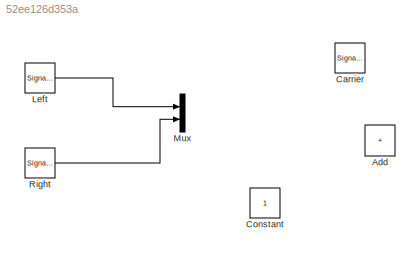
MODEL slx_52ee126d353a
KIND model
CONFIG AbsTol = auto
CONFIG EnableMultiTasking = off
CONFIG FixedStep = auto
CONFIG MaxStep = auto
CONFIG MinStep = auto
CONFIG RelTol = 1e-3
CONFIG SampleTimeConstraint = Unconstrained
CONFIG SolverName = VariableStepAuto
CONFIG StartTime = 0.0
CONFIG StopTime = 10.0
BLOCK [Sum] Add
  IconShape = rectangular
BLOCK [SignalGenerator] Carrier
  Units = rad/sec
BLOCK [Constant] Constant
BLOCK [SignalGenerator] Left
  Units = rad/sec
BLOCK [Mux] Mux
  DisplayOption = bar
  Inputs = 2
BLOCK [SignalGenerator] Right
  Units = rad/sec
LINE Left:1 -> Mux:1
LINE Right:1 -> Mux:2
